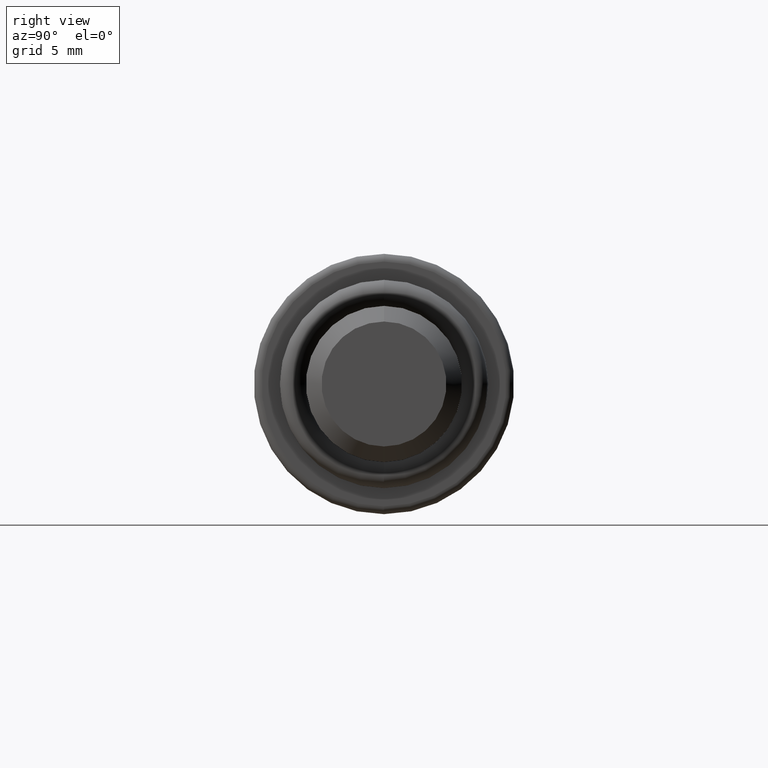
[diagram: clean part render]
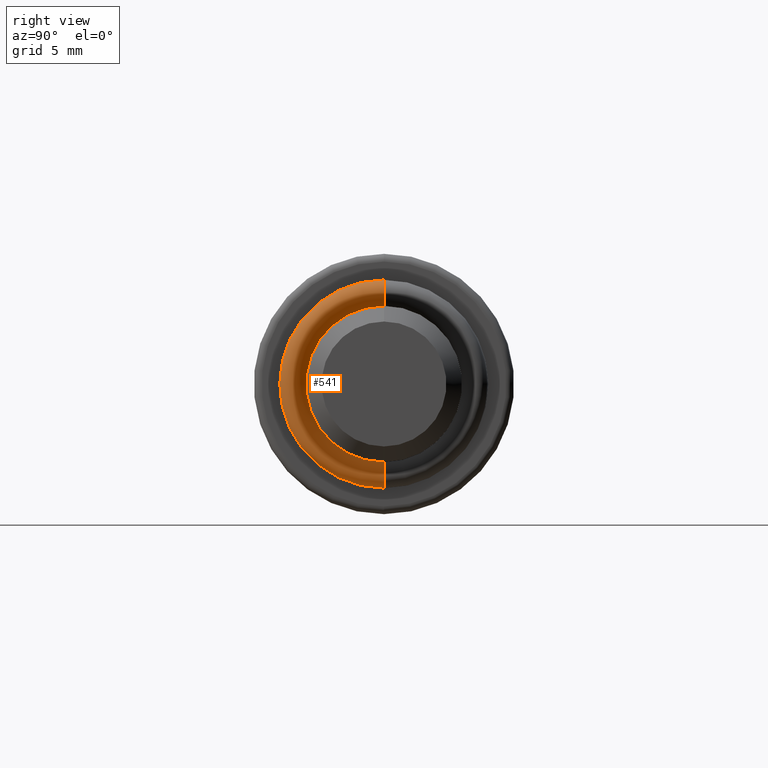
[diagram: same view with one face highlighted and labeled with its STEP entity id]
A machine part, right view. The second image highlights one B-rep face of the part: STEP entity #541.
In plain terms, the highlighted toroidal blend (fillet) surface has major radius 3.5 mm and minor (blend) radius 0.5 mm.
Its self-contained STEP definition (entity closure, byte-faithful):
#9 = DIRECTION ( 'NONE',  ( 1.000000000000000000, -0.0000000000000000000, -0.0000000000000000000 ) ) ;
#56 = DIRECTION ( 'NONE',  ( 0.0000000000000000000, 0.0000000000000000000, -1.000000000000000000 ) ) ;
#75 = DIRECTION ( 'NONE',  ( 0.0000000000000000000, 1.000000000000000000, -1.224646799147353200E-016 ) ) ;
#89 = AXIS2_PLACEMENT_3D ( 'NONE', #98, #9, #253 ) ;
#98 = CARTESIAN_POINT ( 'NONE',  ( -0.1000000000000000100, 0.0000000000000000000, 0.0000000000000000000 ) ) ;
#117 = VERTEX_POINT ( 'NONE', #643 ) ;
#134 = CARTESIAN_POINT ( 'NONE',  ( -0.1000000000000000700, 3.673940397442059400E-016, 2.999999999999999600 ) ) ;
#190 = VERTEX_POINT ( 'NONE', #591 ) ;
#196 = AXIS2_PLACEMENT_3D ( 'NONE', #269, #75, #715 ) ;
#219 = EDGE_CURVE ( 'NONE', #190, #359, #763, .T. ) ;
#243 = AXIS2_PLACEMENT_3D ( 'NONE', #341, #672, #405 ) ;
#245 = CARTESIAN_POINT ( 'NONE',  ( -0.1000000000000000100, 0.0000000000000000000, -3.499999999999999600 ) ) ;
#253 = DIRECTION ( 'NONE',  ( 0.0000000000000000000, 0.0000000000000000000, -1.000000000000000000 ) ) ;
#269 = CARTESIAN_POINT ( 'NONE',  ( -0.1000000000000000100, 4.286263797015736100E-016, 3.499999999999999600 ) ) ;
#279 = VERTEX_POINT ( 'NONE', #134 ) ;
#301 = AXIS2_PLACEMENT_3D ( 'NONE', #245, #812, #56 ) ;
#341 = CARTESIAN_POINT ( 'NONE',  ( -0.1000000000000000700, 0.0000000000000000000, 0.0000000000000000000 ) ) ;
#354 = EDGE_CURVE ( 'NONE', #359, #117, #743, .T. ) ;
#359 = VERTEX_POINT ( 'NONE', #810 ) ;
#361 = CIRCLE ( 'NONE', #243, 2.999999999999999600 ) ;
#385 = AXIS2_PLACEMENT_3D ( 'NONE', #768, #474, #486 ) ;
#391 = ORIENTED_EDGE ( 'NONE', *, *, #219, .T. ) ;
#405 = DIRECTION ( 'NONE',  ( 0.0000000000000000000, 0.0000000000000000000, -1.000000000000000000 ) ) ;
#408 = EDGE_LOOP ( 'NONE', ( #480, #391, #468, #612 ) ) ;
#443 = CIRCLE ( 'NONE', #196, 0.5000000000000004400 ) ;
#468 = ORIENTED_EDGE ( 'NONE', *, *, #354, .T. ) ;
#474 = DIRECTION ( 'NONE',  ( 1.000000000000000000, -0.0000000000000000000, -0.0000000000000000000 ) ) ;
#480 = ORIENTED_EDGE ( 'NONE', *, *, #487, .F. ) ;
#486 = DIRECTION ( 'NONE',  ( 0.0000000000000000000, 0.0000000000000000000, -1.000000000000000000 ) ) ;
#487 = EDGE_CURVE ( 'NONE', #190, #279, #443, .T. ) ;
#518 = EDGE_CURVE ( 'NONE', #279, #117, #361, .T. ) ;
#521 = TOROIDAL_SURFACE ( 'NONE', #385, 3.499999999999999600, 0.5000000000000001100 ) ;
#541 = ADVANCED_FACE ( 'NONE', ( #683 ), #521, .T. ) ;
#591 = CARTESIAN_POINT ( 'NONE',  ( -0.1000000000000000100, 4.898587196589412800E-016, 4.000000000000000000 ) ) ;
#612 = ORIENTED_EDGE ( 'NONE', *, *, #518, .F. ) ;
#643 = CARTESIAN_POINT ( 'NONE',  ( -0.1000000000000000700, 0.0000000000000000000, -2.999999999999999600 ) ) ;
#672 = DIRECTION ( 'NONE',  ( 1.000000000000000000, -0.0000000000000000000, -0.0000000000000000000 ) ) ;
#683 = FACE_OUTER_BOUND ( 'NONE', #408, .T. ) ;
#715 = DIRECTION ( 'NONE',  ( 0.0000000000000000000, 1.224646799147352500E-016, 1.000000000000000000 ) ) ;
#743 = CIRCLE ( 'NONE', #301, 0.5000000000000004400 ) ;
#763 = CIRCLE ( 'NONE', #89, 4.000000000000000000 ) ;
#768 = CARTESIAN_POINT ( 'NONE',  ( -0.1000000000000000100, 0.0000000000000000000, 0.0000000000000000000 ) ) ;
#810 = CARTESIAN_POINT ( 'NONE',  ( -0.1000000000000000100, 0.0000000000000000000, -4.000000000000000000 ) ) ;
#812 = DIRECTION ( 'NONE',  ( -0.0000000000000000000, -1.000000000000000000, -0.0000000000000000000 ) ) ;